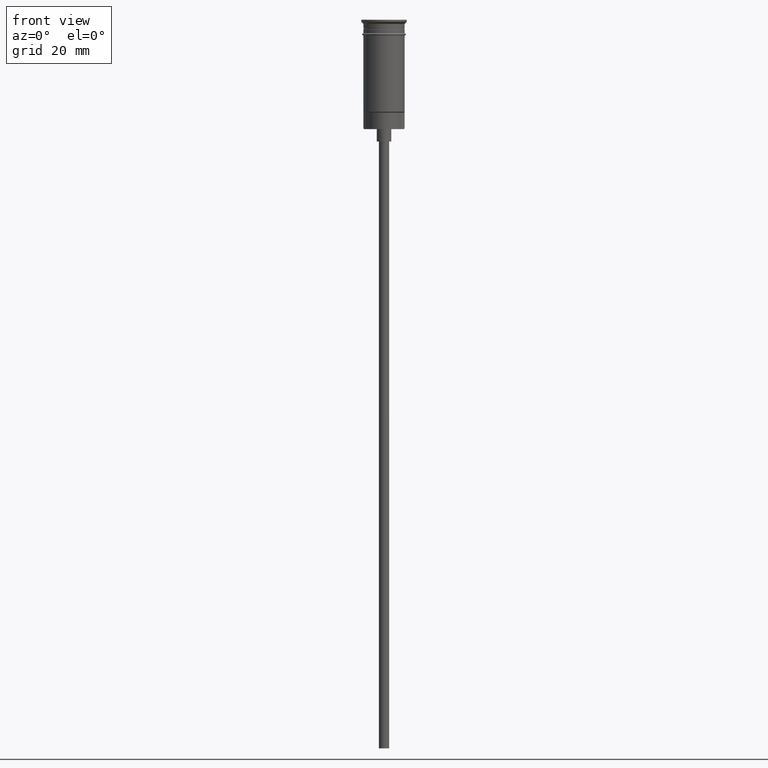
[diagram: clean part render]
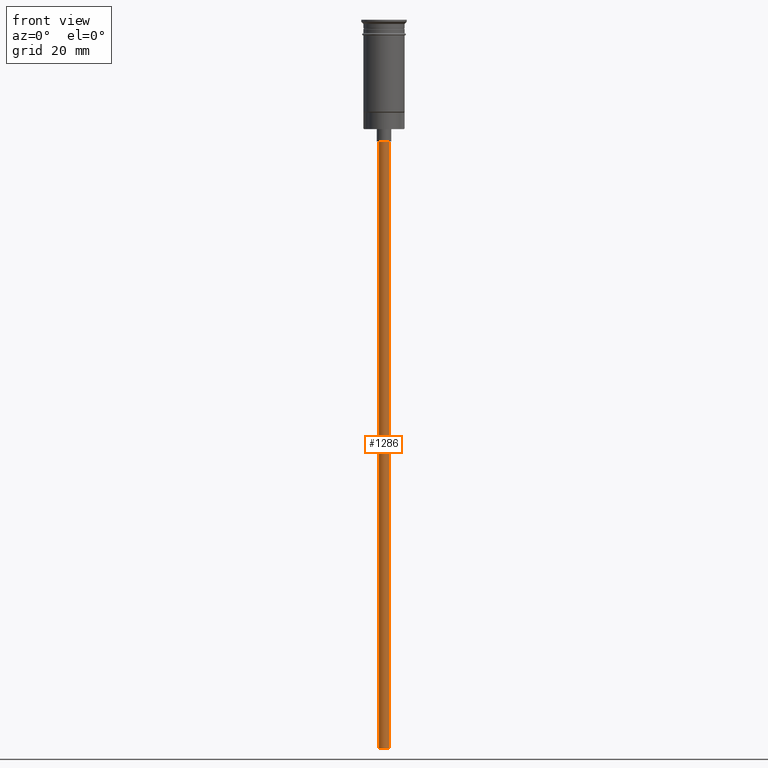
[diagram: same view with one face highlighted and labeled with its STEP entity id]
A machine part, front view. The second image highlights one B-rep face of the part: STEP entity #1286.
In plain terms, the highlighted cylindrical surface (edge-blend (fillet) strip) has radius 1.25 mm, axis along (-0, -0, 1).
Its self-contained STEP definition (entity closure, byte-faithful):
#80 = ORIENTED_EDGE ( 'NONE', *, *, #803, .T. ) ;
#81 = CARTESIAN_POINT ( 'NONE',  ( 1.250000000000000000, 0.000000000000000000, -176.5000000000000000 ) ) ;
#104 = ORIENTED_EDGE ( 'NONE', *, *, #1361, .F. ) ;
#130 = VECTOR ( 'NONE', #257, 1000.000000000000000 ) ;
#152 = DIRECTION ( 'NONE',  ( -1.000000000000000000, 0.000000000000000000, 0.000000000000000000 ) ) ;
#161 = CARTESIAN_POINT ( 'NONE',  ( 0.000000000000000000, 0.000000000000000000, -176.5000000000000000 ) ) ;
#181 = AXIS2_PLACEMENT_3D ( 'NONE', #978, #473, #958 ) ;
#200 = ORIENTED_EDGE ( 'NONE', *, *, #288, .T. ) ;
#234 = FACE_OUTER_BOUND ( 'NONE', #1062, .T. ) ;
#257 = DIRECTION ( 'NONE',  ( -0.000000000000000000, -0.000000000000000000, 1.000000000000000000 ) ) ;
#288 = EDGE_CURVE ( 'NONE', #359, #1232, #1516, .T. ) ;
#359 = VERTEX_POINT ( 'NONE', #81 ) ;
#472 = CARTESIAN_POINT ( 'NONE',  ( 1.250000000000000000, 0.000000000000000000, -29.50000000000000000 ) ) ;
#473 = DIRECTION ( 'NONE',  ( 0.000000000000000000, 0.000000000000000000, -1.000000000000000000 ) ) ;
#490 = CARTESIAN_POINT ( 'NONE',  ( -1.250000000000000000, 1.530808498934191571E-16, -29.50000000000000000 ) ) ;
#567 = CARTESIAN_POINT ( 'NONE',  ( 1.250000000000000000, 0.000000000000000000, -176.5000000000000000 ) ) ;
#646 = DIRECTION ( 'NONE',  ( 1.000000000000000000, 0.000000000000000000, 0.000000000000000000 ) ) ;
#727 = VERTEX_POINT ( 'NONE', #490 ) ;
#738 = CYLINDRICAL_SURFACE ( 'NONE', #937, 1.250000000000000000 ) ;
#760 = CIRCLE ( 'NONE', #1164, 1.250000000000000000 ) ;
#803 = EDGE_CURVE ( 'NONE', #1232, #727, #1282, .T. ) ;
#849 = EDGE_CURVE ( 'NONE', #359, #1565, #760, .T. ) ;
#888 = CARTESIAN_POINT ( 'NONE',  ( -1.250000000000000000, 1.530808498934191571E-16, -176.5000000000000000 ) ) ;
#924 = DIRECTION ( 'NONE',  ( -0.000000000000000000, -0.000000000000000000, 1.000000000000000000 ) ) ;
#937 = AXIS2_PLACEMENT_3D ( 'NONE', #982, #1468, #646 ) ;
#958 = DIRECTION ( 'NONE',  ( -1.000000000000000000, 0.000000000000000000, 0.000000000000000000 ) ) ;
#978 = CARTESIAN_POINT ( 'NONE',  ( 0.000000000000000000, 0.000000000000000000, -29.50000000000000000 ) ) ;
#982 = CARTESIAN_POINT ( 'NONE',  ( 0.000000000000000000, 0.000000000000000000, -176.5000000000000000 ) ) ;
#992 = LINE ( 'NONE', #1109, #130 ) ;
#1062 = EDGE_LOOP ( 'NONE', ( #104, #1406, #200, #80 ) ) ;
#1109 = CARTESIAN_POINT ( 'NONE',  ( -1.250000000000000000, 1.530808498934191571E-16, -176.5000000000000000 ) ) ;
#1114 = VECTOR ( 'NONE', #924, 1000.000000000000000 ) ;
#1164 = AXIS2_PLACEMENT_3D ( 'NONE', #161, #1489, #152 ) ;
#1232 = VERTEX_POINT ( 'NONE', #472 ) ;
#1282 = CIRCLE ( 'NONE', #181, 1.250000000000000000 ) ;
#1286 = ADVANCED_FACE ( 'NONE', ( #234 ), #738, .T. ) ;
#1361 = EDGE_CURVE ( 'NONE', #1565, #727, #992, .T. ) ;
#1406 = ORIENTED_EDGE ( 'NONE', *, *, #849, .F. ) ;
#1468 = DIRECTION ( 'NONE',  ( -0.000000000000000000, -0.000000000000000000, 1.000000000000000000 ) ) ;
#1489 = DIRECTION ( 'NONE',  ( 0.000000000000000000, 0.000000000000000000, -1.000000000000000000 ) ) ;
#1516 = LINE ( 'NONE', #567, #1114 ) ;
#1565 = VERTEX_POINT ( 'NONE', #888 ) ;